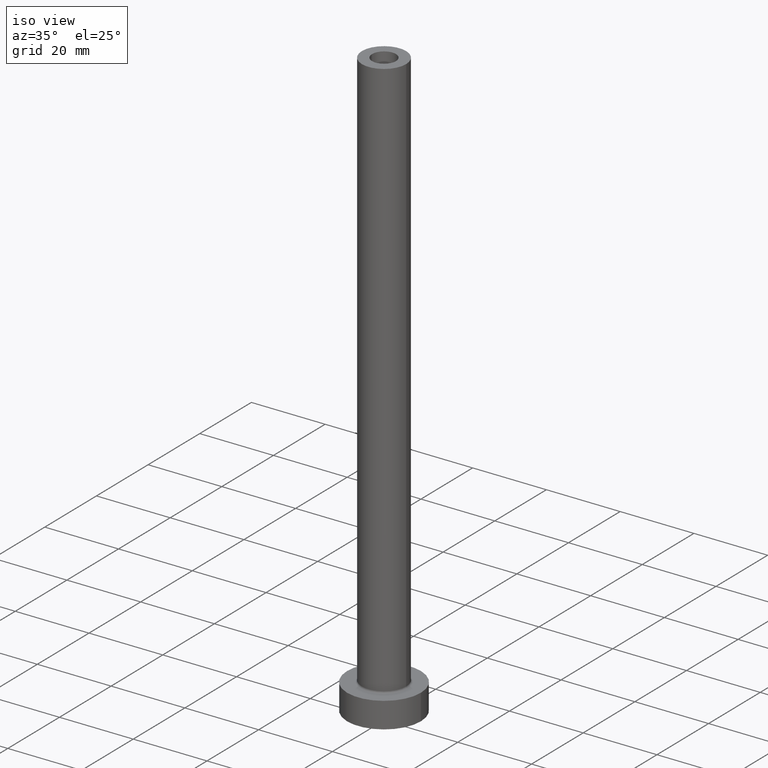
[diagram: clean part render]
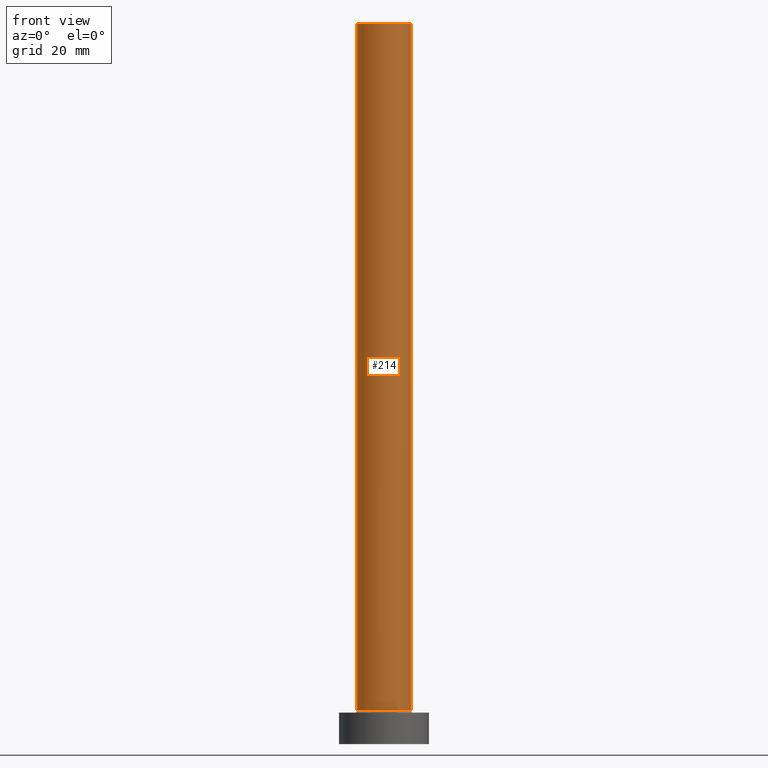
[diagram: tour spotlight — one face highlighted and labeled with its STEP entity id]
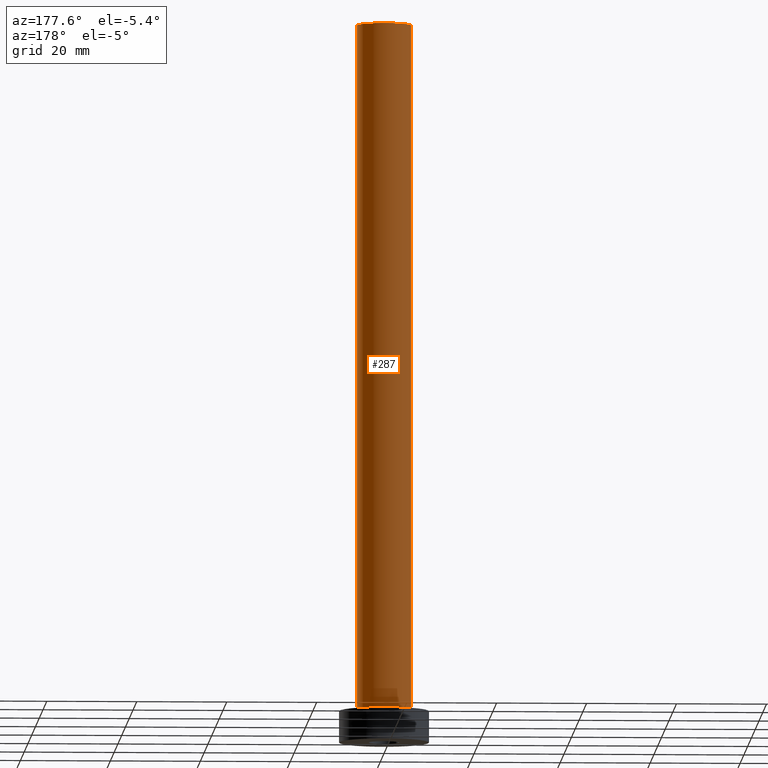
[diagram: tour spotlight — one face highlighted and labeled with its STEP entity id]
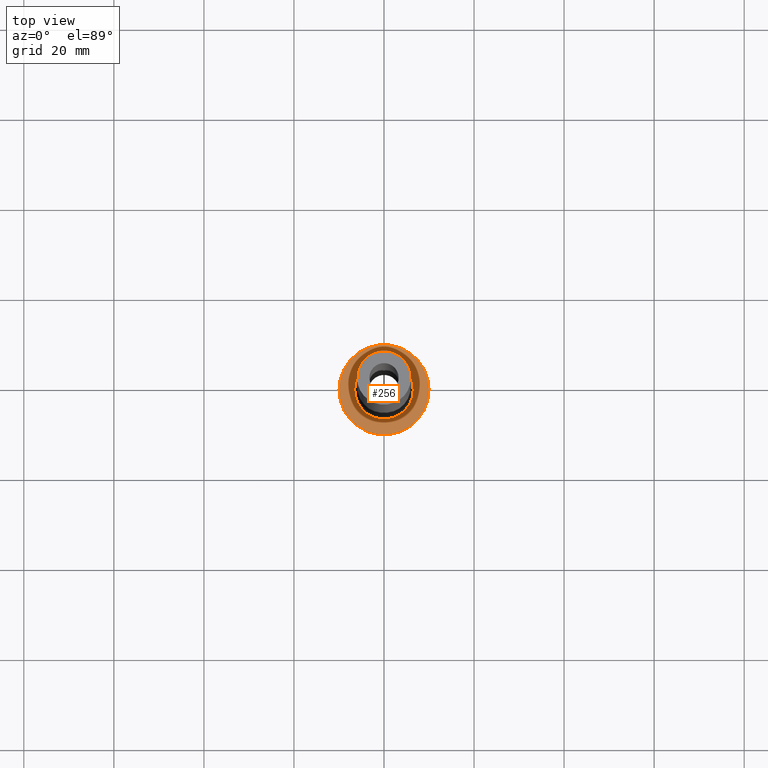
[diagram: tour spotlight — one face highlighted and labeled with its STEP entity id]
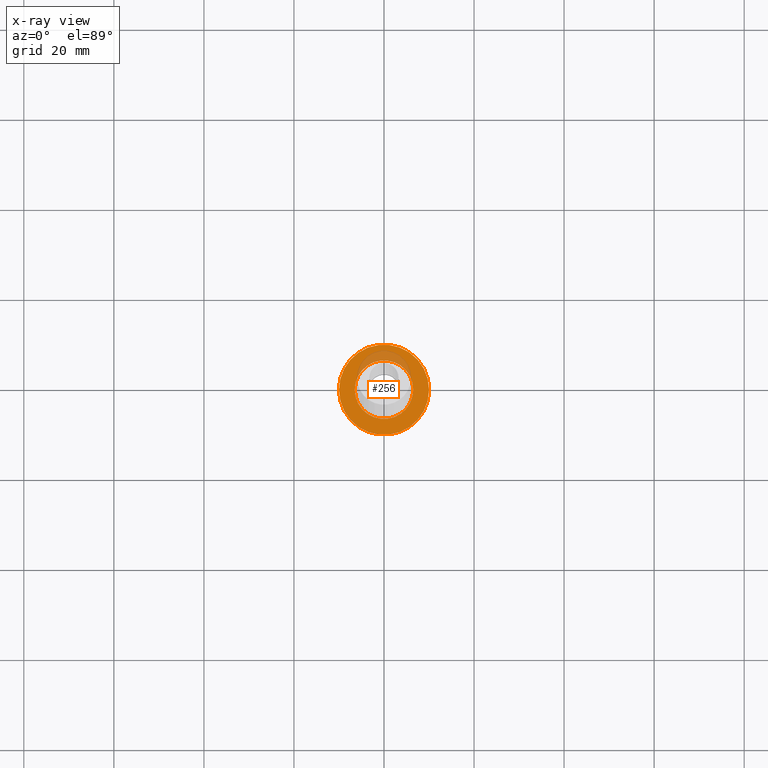
[diagram: x-ray of the same camera — body ghosted, this tour face saturated]
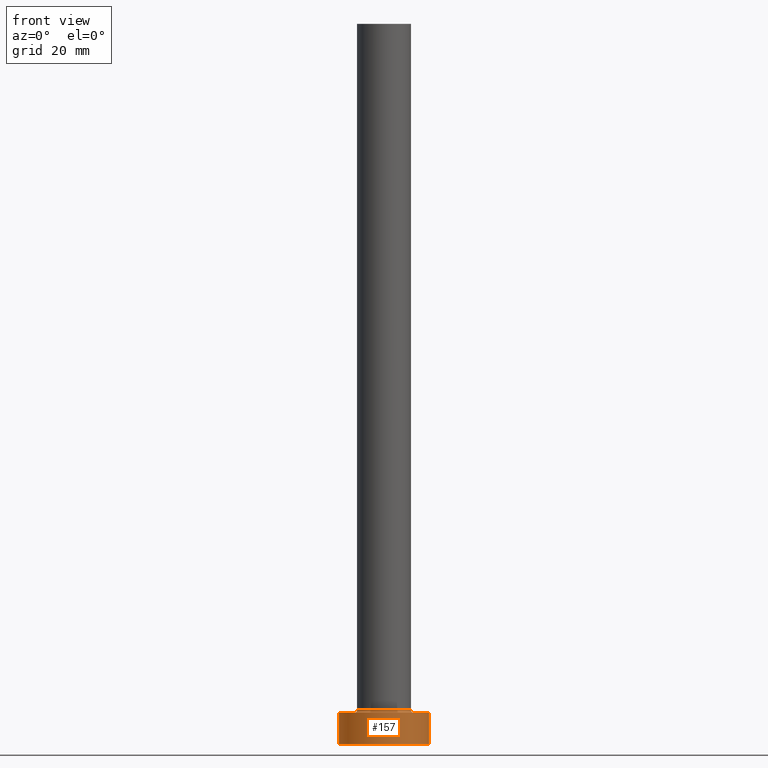
[diagram: tour spotlight — one face highlighted and labeled with its STEP entity id]
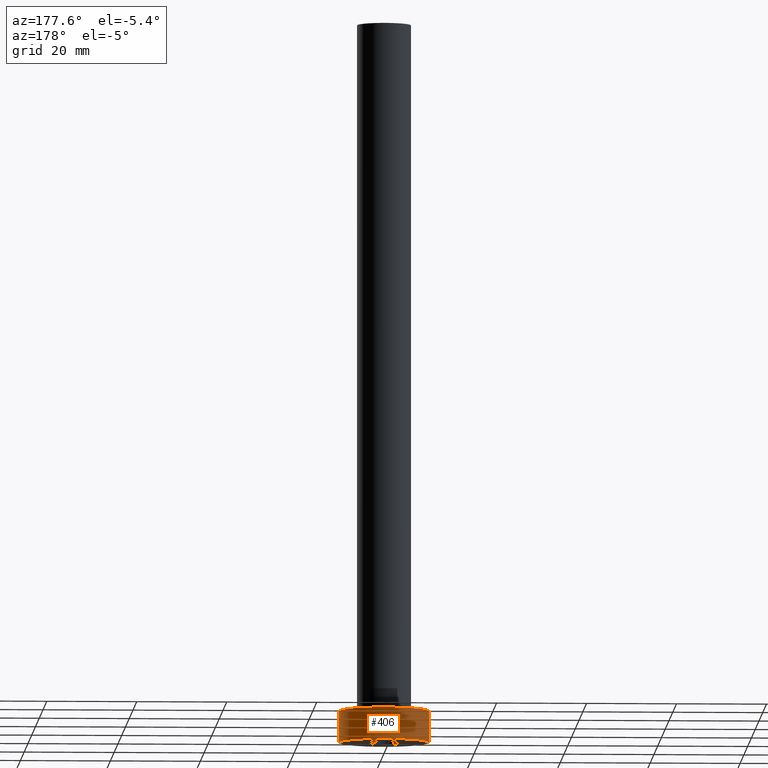
[diagram: tour spotlight — one face highlighted and labeled with its STEP entity id]
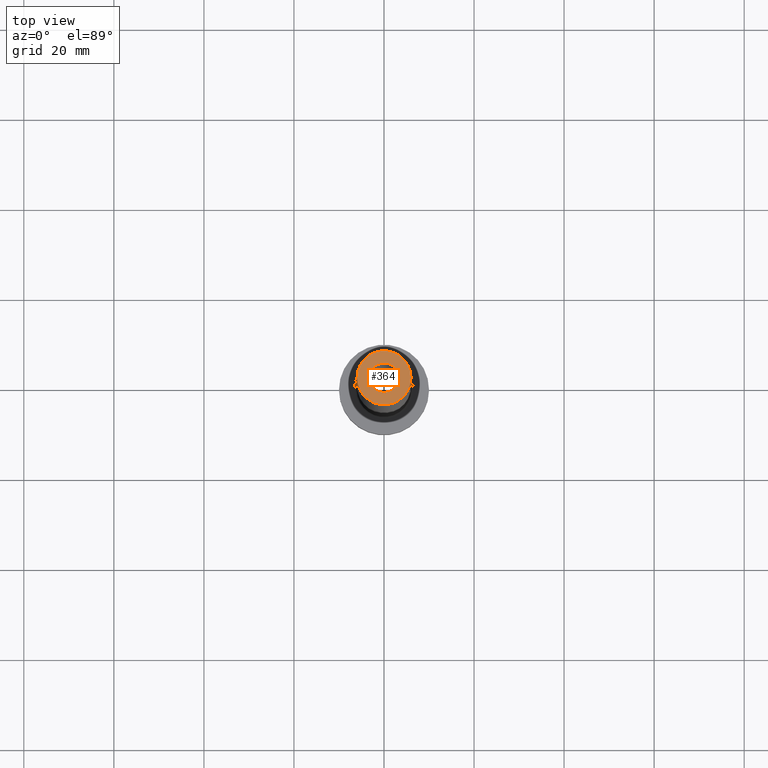
[diagram: tour spotlight — one face highlighted and labeled with its STEP entity id]
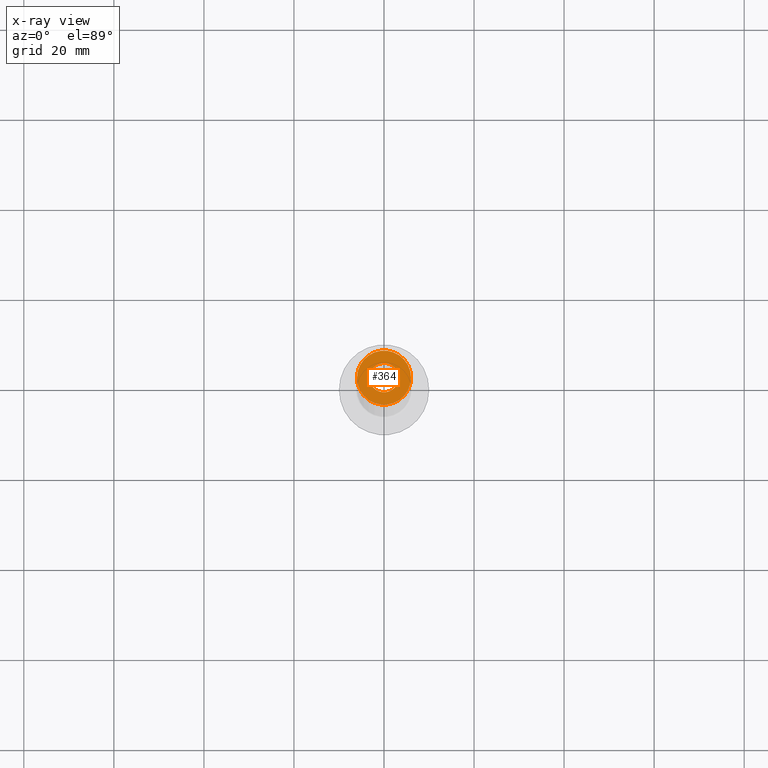
[diagram: x-ray of the same camera — body ghosted, this tour face saturated]
A machine part: a face-by-face anatomy tour. The part has 14 B-rep faces; the first image is the clean iso view, then the 6 largest visible faces are spotlighted one at a time (largest first), each with its STEP entity span.

Face 1 — front view, entity #214. In plain terms, the highlighted cylindrical surface (edge-blend (fillet) strip) has radius 6 mm, axis along (-0, -0, -1).
Definition (entity closure, byte-faithful):
#5 = DIRECTION ( 'NONE',  ( -1.000000000000000000, 0.000000000000000000, 0.000000000000000000 ) ) ;
#7 = EDGE_CURVE ( 'NONE', #299, #183, #323, .T. ) ;
#19 = VECTOR ( 'NONE', #259, 1000.000000000000000 ) ;
#25 = LINE ( 'NONE', #304, #104 ) ;
#48 = LINE ( 'NONE', #181, #19 ) ;
#59 = DIRECTION ( 'NONE',  ( 1.000000000000000000, 0.000000000000000000, 0.000000000000000000 ) ) ;
#70 = DIRECTION ( 'NONE',  ( -0.000000000000000000, -0.000000000000000000, -1.000000000000000000 ) ) ;
#79 = VERTEX_POINT ( 'NONE', #94 ) ;
#94 = CARTESIAN_POINT ( 'NONE',  ( 6.000000000000000888, 7.347880794884120722E-16, 160.0000000000000000 ) ) ;
#104 = VECTOR ( 'NONE', #70, 1000.000000000000000 ) ;
#141 = AXIS2_PLACEMENT_3D ( 'NONE', #379, #303, #59 ) ;
#142 = CARTESIAN_POINT ( 'NONE',  ( -6.000000000000000888, 0.000000000000000000, 160.0000000000000000 ) ) ;
#153 = ORIENTED_EDGE ( 'NONE', *, *, #428, .T. ) ;
#164 = EDGE_CURVE ( 'NONE', #79, #183, #25, .T. ) ;
#174 = CIRCLE ( 'NONE', #236, 6.000000000000000888 ) ;
#181 = CARTESIAN_POINT ( 'NONE',  ( -6.000000000000000888, 0.000000000000000000, 160.0000000000000000 ) ) ;
#183 = VERTEX_POINT ( 'NONE', #239 ) ;
#188 = AXIS2_PLACEMENT_3D ( 'NONE', #427, #248, #5 ) ;
#191 = VERTEX_POINT ( 'NONE', #142 ) ;
#214 = ADVANCED_FACE ( 'NONE', ( #454 ), #431, .T. ) ;
#217 = EDGE_LOOP ( 'NONE', ( #288, #441, #153, #400 ) ) ;
#236 = AXIS2_PLACEMENT_3D ( 'NONE', #389, #282, #240 ) ;
#239 = CARTESIAN_POINT ( 'NONE',  ( 6.000000000000000888, 7.347880794884120722E-16, 7.500000000000007105 ) ) ;
#240 = DIRECTION ( 'NONE',  ( 1.000000000000000000, 0.000000000000000000, 0.000000000000000000 ) ) ;
#248 = DIRECTION ( 'NONE',  ( -0.000000000000000000, -0.000000000000000000, -1.000000000000000000 ) ) ;
#259 = DIRECTION ( 'NONE',  ( -0.000000000000000000, -0.000000000000000000, -1.000000000000000000 ) ) ;
#282 = DIRECTION ( 'NONE',  ( 0.000000000000000000, 0.000000000000000000, 1.000000000000000000 ) ) ;
#288 = ORIENTED_EDGE ( 'NONE', *, *, #164, .F. ) ;
#299 = VERTEX_POINT ( 'NONE', #415 ) ;
#303 = DIRECTION ( 'NONE',  ( 0.000000000000000000, 0.000000000000000000, 1.000000000000000000 ) ) ;
#304 = CARTESIAN_POINT ( 'NONE',  ( 6.000000000000000888, 7.347880794884120722E-16, 160.0000000000000000 ) ) ;
#323 = CIRCLE ( 'NONE', #141, 6.000000000000000888 ) ;
#379 = CARTESIAN_POINT ( 'NONE',  ( 0.000000000000000000, 0.000000000000000000, 7.500000000000007105 ) ) ;
#389 = CARTESIAN_POINT ( 'NONE',  ( 0.000000000000000000, 0.000000000000000000, 160.0000000000000000 ) ) ;
#400 = ORIENTED_EDGE ( 'NONE', *, *, #7, .T. ) ;
#415 = CARTESIAN_POINT ( 'NONE',  ( -6.000000000000000888, 0.000000000000000000, 7.500000000000007105 ) ) ;
#427 = CARTESIAN_POINT ( 'NONE',  ( 0.000000000000000000, 0.000000000000000000, 160.0000000000000000 ) ) ;
#428 = EDGE_CURVE ( 'NONE', #191, #299, #48, .T. ) ;
#431 = CYLINDRICAL_SURFACE ( 'NONE', #188, 6.000000000000000888 ) ;
#441 = ORIENTED_EDGE ( 'NONE', *, *, #443, .F. ) ;
#443 = EDGE_CURVE ( 'NONE', #191, #79, #174, .T. ) ;
#454 = FACE_OUTER_BOUND ( 'NONE', #217, .T. ) ;

Face 2 — auxiliary view, entity #287. In plain terms, the highlighted cylindrical surface (edge-blend (fillet) strip) has radius 6 mm, axis along (-0, -0, -1).
Definition (entity closure, byte-faithful):
#11 = ORIENTED_EDGE ( 'NONE', *, *, #283, .T. ) ;
#19 = VECTOR ( 'NONE', #259, 1000.000000000000000 ) ;
#25 = LINE ( 'NONE', #304, #104 ) ;
#48 = LINE ( 'NONE', #181, #19 ) ;
#52 = DIRECTION ( 'NONE',  ( 0.000000000000000000, 0.000000000000000000, 1.000000000000000000 ) ) ;
#61 = CARTESIAN_POINT ( 'NONE',  ( 0.000000000000000000, 0.000000000000000000, 160.0000000000000000 ) ) ;
#63 = DIRECTION ( 'NONE',  ( 1.000000000000000000, 0.000000000000000000, 0.000000000000000000 ) ) ;
#70 = DIRECTION ( 'NONE',  ( -0.000000000000000000, -0.000000000000000000, -1.000000000000000000 ) ) ;
#79 = VERTEX_POINT ( 'NONE', #94 ) ;
#83 = FACE_OUTER_BOUND ( 'NONE', #437, .T. ) ;
#85 = EDGE_CURVE ( 'NONE', #79, #191, #412, .T. ) ;
#91 = DIRECTION ( 'NONE',  ( 0.000000000000000000, 0.000000000000000000, 1.000000000000000000 ) ) ;
#94 = CARTESIAN_POINT ( 'NONE',  ( 6.000000000000000888, 7.347880794884120722E-16, 160.0000000000000000 ) ) ;
#95 = CARTESIAN_POINT ( 'NONE',  ( 0.000000000000000000, 0.000000000000000000, 7.500000000000007105 ) ) ;
#104 = VECTOR ( 'NONE', #70, 1000.000000000000000 ) ;
#106 = AXIS2_PLACEMENT_3D ( 'NONE', #61, #91, #381 ) ;
#133 = CIRCLE ( 'NONE', #143, 6.000000000000000888 ) ;
#142 = CARTESIAN_POINT ( 'NONE',  ( -6.000000000000000888, 0.000000000000000000, 160.0000000000000000 ) ) ;
#143 = AXIS2_PLACEMENT_3D ( 'NONE', #95, #52, #63 ) ;
#164 = EDGE_CURVE ( 'NONE', #79, #183, #25, .T. ) ;
#166 = AXIS2_PLACEMENT_3D ( 'NONE', #302, #365, #314 ) ;
#181 = CARTESIAN_POINT ( 'NONE',  ( -6.000000000000000888, 0.000000000000000000, 160.0000000000000000 ) ) ;
#183 = VERTEX_POINT ( 'NONE', #239 ) ;
#184 = CYLINDRICAL_SURFACE ( 'NONE', #166, 6.000000000000000888 ) ;
#191 = VERTEX_POINT ( 'NONE', #142 ) ;
#239 = CARTESIAN_POINT ( 'NONE',  ( 6.000000000000000888, 7.347880794884120722E-16, 7.500000000000007105 ) ) ;
#259 = DIRECTION ( 'NONE',  ( -0.000000000000000000, -0.000000000000000000, -1.000000000000000000 ) ) ;
#283 = EDGE_CURVE ( 'NONE', #183, #299, #133, .T. ) ;
#287 = ADVANCED_FACE ( 'NONE', ( #83 ), #184, .T. ) ;
#299 = VERTEX_POINT ( 'NONE', #415 ) ;
#302 = CARTESIAN_POINT ( 'NONE',  ( 0.000000000000000000, 0.000000000000000000, 160.0000000000000000 ) ) ;
#304 = CARTESIAN_POINT ( 'NONE',  ( 6.000000000000000888, 7.347880794884120722E-16, 160.0000000000000000 ) ) ;
#314 = DIRECTION ( 'NONE',  ( -1.000000000000000000, 0.000000000000000000, 0.000000000000000000 ) ) ;
#330 = ORIENTED_EDGE ( 'NONE', *, *, #428, .F. ) ;
#365 = DIRECTION ( 'NONE',  ( -0.000000000000000000, -0.000000000000000000, -1.000000000000000000 ) ) ;
#381 = DIRECTION ( 'NONE',  ( 1.000000000000000000, 0.000000000000000000, 0.000000000000000000 ) ) ;
#412 = CIRCLE ( 'NONE', #106, 6.000000000000000888 ) ;
#413 = ORIENTED_EDGE ( 'NONE', *, *, #85, .F. ) ;
#415 = CARTESIAN_POINT ( 'NONE',  ( -6.000000000000000888, 0.000000000000000000, 7.500000000000007105 ) ) ;
#428 = EDGE_CURVE ( 'NONE', #191, #299, #48, .T. ) ;
#433 = ORIENTED_EDGE ( 'NONE', *, *, #164, .T. ) ;
#437 = EDGE_LOOP ( 'NONE', ( #413, #433, #11, #330 ) ) ;

Face 3 — top view, entity #256. An x-ray twin of the same camera follows (body ghosted, this face saturated) — the face is partly hidden behind the body. In plain terms, the highlighted planar face has unit normal (0, 0, 1).
Definition (entity closure, byte-faithful):
#3 = AXIS2_PLACEMENT_3D ( 'NONE', #337, #227, #298 ) ;
#12 = VERTEX_POINT ( 'NONE', #22 ) ;
#15 = CIRCLE ( 'NONE', #274, 6.500000000000000888 ) ;
#22 = CARTESIAN_POINT ( 'NONE',  ( 10.00000000000000000, 1.224646799147353256E-15, 7.000000000000000000 ) ) ;
#24 = CIRCLE ( 'NONE', #285, 10.00000000000000000 ) ;
#32 = CARTESIAN_POINT ( 'NONE',  ( 0.000000000000000000, 0.000000000000000000, 7.000000000000000000 ) ) ;
#71 = EDGE_CURVE ( 'NONE', #362, #410, #249, .T. ) ;
#82 = ORIENTED_EDGE ( 'NONE', *, *, #108, .T. ) ;
#92 = EDGE_LOOP ( 'NONE', ( #363, #136 ) ) ;
#98 = EDGE_CURVE ( 'NONE', #309, #12, #366, .T. ) ;
#108 = EDGE_CURVE ( 'NONE', #12, #309, #24, .T. ) ;
#127 = EDGE_LOOP ( 'NONE', ( #333, #82 ) ) ;
#136 = ORIENTED_EDGE ( 'NONE', *, *, #71, .T. ) ;
#138 = CARTESIAN_POINT ( 'NONE',  ( 0.000000000000000000, 0.000000000000000000, 7.000000000000000000 ) ) ;
#152 = FACE_OUTER_BOUND ( 'NONE', #127, .T. ) ;
#155 = DIRECTION ( 'NONE',  ( 1.000000000000000000, 0.000000000000000000, 0.000000000000000000 ) ) ;
#163 = AXIS2_PLACEMENT_3D ( 'NONE', #32, #346, #198 ) ;
#171 = DIRECTION ( 'NONE',  ( 1.000000000000000000, 0.000000000000000000, 0.000000000000000000 ) ) ;
#179 = FACE_BOUND ( 'NONE', #92, .T. ) ;
#198 = DIRECTION ( 'NONE',  ( 1.000000000000000000, 0.000000000000000000, 0.000000000000000000 ) ) ;
#202 = CARTESIAN_POINT ( 'NONE',  ( -10.00000000000000000, 0.000000000000000000, 7.000000000000000000 ) ) ;
#208 = DIRECTION ( 'NONE',  ( 0.000000000000000000, 0.000000000000000000, 1.000000000000000000 ) ) ;
#227 = DIRECTION ( 'NONE',  ( 0.000000000000000000, 0.000000000000000000, 1.000000000000000000 ) ) ;
#249 = CIRCLE ( 'NONE', #308, 6.500000000000000888 ) ;
#256 = ADVANCED_FACE ( 'NONE', ( #179, #152 ), #296, .T. ) ;
#261 = EDGE_CURVE ( 'NONE', #410, #362, #15, .T. ) ;
#262 = CARTESIAN_POINT ( 'NONE',  ( 0.000000000000000000, 0.000000000000000000, 7.000000000000000000 ) ) ;
#274 = AXIS2_PLACEMENT_3D ( 'NONE', #262, #440, #155 ) ;
#276 = CARTESIAN_POINT ( 'NONE',  ( 0.000000000000000000, 0.000000000000000000, 7.000000000000000000 ) ) ;
#285 = AXIS2_PLACEMENT_3D ( 'NONE', #276, #208, #319 ) ;
#296 = PLANE ( 'NONE',  #3 ) ;
#298 = DIRECTION ( 'NONE',  ( 1.000000000000000000, 0.000000000000000000, -0.000000000000000000 ) ) ;
#306 = DIRECTION ( 'NONE',  ( -0.000000000000000000, -0.000000000000000000, -1.000000000000000000 ) ) ;
#308 = AXIS2_PLACEMENT_3D ( 'NONE', #138, #306, #171 ) ;
#309 = VERTEX_POINT ( 'NONE', #202 ) ;
#319 = DIRECTION ( 'NONE',  ( 1.000000000000000000, 0.000000000000000000, 0.000000000000000000 ) ) ;
#333 = ORIENTED_EDGE ( 'NONE', *, *, #98, .T. ) ;
#337 = CARTESIAN_POINT ( 'NONE',  ( 0.000000000000000000, 0.000000000000000000, 7.000000000000000000 ) ) ;
#346 = DIRECTION ( 'NONE',  ( 0.000000000000000000, 0.000000000000000000, 1.000000000000000000 ) ) ;
#362 = VERTEX_POINT ( 'NONE', #372 ) ;
#363 = ORIENTED_EDGE ( 'NONE', *, *, #261, .T. ) ;
#366 = CIRCLE ( 'NONE', #163, 10.00000000000000000 ) ;
#372 = CARTESIAN_POINT ( 'NONE',  ( -6.500000000000000888, 7.960204194457796463E-16, 7.000000000000002665 ) ) ;
#382 = CARTESIAN_POINT ( 'NONE',  ( 6.500000000000000888, 0.000000000000000000, 7.000000000000002665 ) ) ;
#410 = VERTEX_POINT ( 'NONE', #382 ) ;
#440 = DIRECTION ( 'NONE',  ( -0.000000000000000000, -0.000000000000000000, -1.000000000000000000 ) ) ;

Face 4 — front view, entity #157. In plain terms, the highlighted cylindrical surface (partial cylindrical patch) has radius 10 mm, axis along (-0, -0, -1).
Definition (entity closure, byte-faithful):
#12 = VERTEX_POINT ( 'NONE', #22 ) ;
#18 = EDGE_CURVE ( 'NONE', #167, #383, #112, .T. ) ;
#22 = CARTESIAN_POINT ( 'NONE',  ( 10.00000000000000000, 1.224646799147353256E-15, 7.000000000000000000 ) ) ;
#23 = CYLINDRICAL_SURFACE ( 'NONE', #402, 10.00000000000000000 ) ;
#27 = ORIENTED_EDGE ( 'NONE', *, *, #335, .F. ) ;
#32 = CARTESIAN_POINT ( 'NONE',  ( 0.000000000000000000, 0.000000000000000000, 7.000000000000000000 ) ) ;
#56 = CARTESIAN_POINT ( 'NONE',  ( 0.000000000000000000, 0.000000000000000000, 0.000000000000000000 ) ) ;
#66 = CARTESIAN_POINT ( 'NONE',  ( -10.00000000000000000, 0.000000000000000000, 0.000000000000000000 ) ) ;
#98 = EDGE_CURVE ( 'NONE', #309, #12, #366, .T. ) ;
#112 = CIRCLE ( 'NONE', #172, 10.00000000000000000 ) ;
#118 = ORIENTED_EDGE ( 'NONE', *, *, #353, .T. ) ;
#126 = LINE ( 'NONE', #376, #435 ) ;
#149 = ORIENTED_EDGE ( 'NONE', *, *, #98, .F. ) ;
#157 = ADVANCED_FACE ( 'NONE', ( #158 ), #23, .T. ) ;
#158 = FACE_OUTER_BOUND ( 'NONE', #450, .T. ) ;
#163 = AXIS2_PLACEMENT_3D ( 'NONE', #32, #346, #198 ) ;
#167 = VERTEX_POINT ( 'NONE', #66 ) ;
#172 = AXIS2_PLACEMENT_3D ( 'NONE', #56, #189, #185 ) ;
#185 = DIRECTION ( 'NONE',  ( 1.000000000000000000, 0.000000000000000000, 0.000000000000000000 ) ) ;
#189 = DIRECTION ( 'NONE',  ( 0.000000000000000000, 0.000000000000000000, 1.000000000000000000 ) ) ;
#196 = LINE ( 'NONE', #331, #422 ) ;
#198 = DIRECTION ( 'NONE',  ( 1.000000000000000000, 0.000000000000000000, 0.000000000000000000 ) ) ;
#199 = CARTESIAN_POINT ( 'NONE',  ( 10.00000000000000000, 1.224646799147353256E-15, 0.000000000000000000 ) ) ;
#202 = CARTESIAN_POINT ( 'NONE',  ( -10.00000000000000000, 0.000000000000000000, 7.000000000000000000 ) ) ;
#273 = CARTESIAN_POINT ( 'NONE',  ( 0.000000000000000000, 0.000000000000000000, 7.000000000000000000 ) ) ;
#295 = ORIENTED_EDGE ( 'NONE', *, *, #18, .T. ) ;
#309 = VERTEX_POINT ( 'NONE', #202 ) ;
#331 = CARTESIAN_POINT ( 'NONE',  ( 10.00000000000000000, 1.224646799147353256E-15, 7.000000000000000000 ) ) ;
#335 = EDGE_CURVE ( 'NONE', #12, #383, #196, .T. ) ;
#338 = DIRECTION ( 'NONE',  ( -0.000000000000000000, -0.000000000000000000, -1.000000000000000000 ) ) ;
#346 = DIRECTION ( 'NONE',  ( 0.000000000000000000, 0.000000000000000000, 1.000000000000000000 ) ) ;
#353 = EDGE_CURVE ( 'NONE', #309, #167, #126, .T. ) ;
#366 = CIRCLE ( 'NONE', #163, 10.00000000000000000 ) ;
#376 = CARTESIAN_POINT ( 'NONE',  ( -10.00000000000000000, 0.000000000000000000, 7.000000000000000000 ) ) ;
#383 = VERTEX_POINT ( 'NONE', #199 ) ;
#402 = AXIS2_PLACEMENT_3D ( 'NONE', #273, #338, #418 ) ;
#409 = DIRECTION ( 'NONE',  ( -0.000000000000000000, -0.000000000000000000, -1.000000000000000000 ) ) ;
#418 = DIRECTION ( 'NONE',  ( -1.000000000000000000, 0.000000000000000000, 0.000000000000000000 ) ) ;
#422 = VECTOR ( 'NONE', #449, 1000.000000000000000 ) ;
#435 = VECTOR ( 'NONE', #409, 1000.000000000000000 ) ;
#449 = DIRECTION ( 'NONE',  ( -0.000000000000000000, -0.000000000000000000, -1.000000000000000000 ) ) ;
#450 = EDGE_LOOP ( 'NONE', ( #27, #149, #118, #295 ) ) ;

Face 5 — auxiliary view, entity #406. In plain terms, the highlighted cylindrical surface (partial cylindrical patch) has radius 10 mm, axis along (-0, -0, -1).
Definition (entity closure, byte-faithful):
#12 = VERTEX_POINT ( 'NONE', #22 ) ;
#22 = CARTESIAN_POINT ( 'NONE',  ( 10.00000000000000000, 1.224646799147353256E-15, 7.000000000000000000 ) ) ;
#24 = CIRCLE ( 'NONE', #285, 10.00000000000000000 ) ;
#31 = FACE_OUTER_BOUND ( 'NONE', #325, .T. ) ;
#43 = AXIS2_PLACEMENT_3D ( 'NONE', #321, #105, #102 ) ;
#66 = CARTESIAN_POINT ( 'NONE',  ( -10.00000000000000000, 0.000000000000000000, 0.000000000000000000 ) ) ;
#102 = DIRECTION ( 'NONE',  ( -1.000000000000000000, 0.000000000000000000, 0.000000000000000000 ) ) ;
#105 = DIRECTION ( 'NONE',  ( -0.000000000000000000, -0.000000000000000000, -1.000000000000000000 ) ) ;
#108 = EDGE_CURVE ( 'NONE', #12, #309, #24, .T. ) ;
#126 = LINE ( 'NONE', #376, #435 ) ;
#131 = DIRECTION ( 'NONE',  ( 0.000000000000000000, 0.000000000000000000, 1.000000000000000000 ) ) ;
#167 = VERTEX_POINT ( 'NONE', #66 ) ;
#186 = ORIENTED_EDGE ( 'NONE', *, *, #108, .F. ) ;
#196 = LINE ( 'NONE', #331, #422 ) ;
#199 = CARTESIAN_POINT ( 'NONE',  ( 10.00000000000000000, 1.224646799147353256E-15, 0.000000000000000000 ) ) ;
#202 = CARTESIAN_POINT ( 'NONE',  ( -10.00000000000000000, 0.000000000000000000, 7.000000000000000000 ) ) ;
#208 = DIRECTION ( 'NONE',  ( 0.000000000000000000, 0.000000000000000000, 1.000000000000000000 ) ) ;
#225 = CIRCLE ( 'NONE', #286, 10.00000000000000000 ) ;
#276 = CARTESIAN_POINT ( 'NONE',  ( 0.000000000000000000, 0.000000000000000000, 7.000000000000000000 ) ) ;
#285 = AXIS2_PLACEMENT_3D ( 'NONE', #276, #208, #319 ) ;
#286 = AXIS2_PLACEMENT_3D ( 'NONE', #343, #131, #421 ) ;
#309 = VERTEX_POINT ( 'NONE', #202 ) ;
#319 = DIRECTION ( 'NONE',  ( 1.000000000000000000, 0.000000000000000000, 0.000000000000000000 ) ) ;
#321 = CARTESIAN_POINT ( 'NONE',  ( 0.000000000000000000, 0.000000000000000000, 7.000000000000000000 ) ) ;
#325 = EDGE_LOOP ( 'NONE', ( #186, #373, #329, #340 ) ) ;
#329 = ORIENTED_EDGE ( 'NONE', *, *, #390, .T. ) ;
#331 = CARTESIAN_POINT ( 'NONE',  ( 10.00000000000000000, 1.224646799147353256E-15, 7.000000000000000000 ) ) ;
#335 = EDGE_CURVE ( 'NONE', #12, #383, #196, .T. ) ;
#340 = ORIENTED_EDGE ( 'NONE', *, *, #353, .F. ) ;
#343 = CARTESIAN_POINT ( 'NONE',  ( 0.000000000000000000, 0.000000000000000000, 0.000000000000000000 ) ) ;
#353 = EDGE_CURVE ( 'NONE', #309, #167, #126, .T. ) ;
#373 = ORIENTED_EDGE ( 'NONE', *, *, #335, .T. ) ;
#376 = CARTESIAN_POINT ( 'NONE',  ( -10.00000000000000000, 0.000000000000000000, 7.000000000000000000 ) ) ;
#383 = VERTEX_POINT ( 'NONE', #199 ) ;
#388 = CYLINDRICAL_SURFACE ( 'NONE', #43, 10.00000000000000000 ) ;
#390 = EDGE_CURVE ( 'NONE', #383, #167, #225, .T. ) ;
#406 = ADVANCED_FACE ( 'NONE', ( #31 ), #388, .T. ) ;
#409 = DIRECTION ( 'NONE',  ( -0.000000000000000000, -0.000000000000000000, -1.000000000000000000 ) ) ;
#421 = DIRECTION ( 'NONE',  ( 1.000000000000000000, 0.000000000000000000, 0.000000000000000000 ) ) ;
#422 = VECTOR ( 'NONE', #449, 1000.000000000000000 ) ;
#435 = VECTOR ( 'NONE', #409, 1000.000000000000000 ) ;
#449 = DIRECTION ( 'NONE',  ( -0.000000000000000000, -0.000000000000000000, -1.000000000000000000 ) ) ;

Face 6 — top view, entity #364. An x-ray twin of the same camera follows (body ghosted, this face saturated) — the face is partly hidden behind the body. In plain terms, the highlighted planar face has unit normal (0, 0, 1).
Definition (entity closure, byte-faithful):
#2 = DIRECTION ( 'NONE',  ( 1.000000000000000000, 0.000000000000000000, 0.000000000000000000 ) ) ;
#17 = VERTEX_POINT ( 'NONE', #424 ) ;
#38 = EDGE_CURVE ( 'NONE', #81, #17, #232, .T. ) ;
#47 = CARTESIAN_POINT ( 'NONE',  ( 0.000000000000000000, 0.000000000000000000, 160.0000000000000000 ) ) ;
#51 = AXIS2_PLACEMENT_3D ( 'NONE', #47, #444, #399 ) ;
#58 = FACE_BOUND ( 'NONE', #290, .T. ) ;
#61 = CARTESIAN_POINT ( 'NONE',  ( 0.000000000000000000, 0.000000000000000000, 160.0000000000000000 ) ) ;
#62 = CARTESIAN_POINT ( 'NONE',  ( 0.000000000000000000, 0.000000000000000000, 160.0000000000000000 ) ) ;
#78 = EDGE_LOOP ( 'NONE', ( #146, #367 ) ) ;
#79 = VERTEX_POINT ( 'NONE', #94 ) ;
#81 = VERTEX_POINT ( 'NONE', #135 ) ;
#85 = EDGE_CURVE ( 'NONE', #79, #191, #412, .T. ) ;
#91 = DIRECTION ( 'NONE',  ( 0.000000000000000000, 0.000000000000000000, 1.000000000000000000 ) ) ;
#94 = CARTESIAN_POINT ( 'NONE',  ( 6.000000000000000888, 7.347880794884120722E-16, 160.0000000000000000 ) ) ;
#106 = AXIS2_PLACEMENT_3D ( 'NONE', #61, #91, #381 ) ;
#115 = CIRCLE ( 'NONE', #350, 3.250000000000000444 ) ;
#135 = CARTESIAN_POINT ( 'NONE',  ( -3.250000000000000444, 0.000000000000000000, 160.0000000000000000 ) ) ;
#142 = CARTESIAN_POINT ( 'NONE',  ( -6.000000000000000888, 0.000000000000000000, 160.0000000000000000 ) ) ;
#146 = ORIENTED_EDGE ( 'NONE', *, *, #443, .T. ) ;
#159 = PLANE ( 'NONE',  #442 ) ;
#174 = CIRCLE ( 'NONE', #236, 6.000000000000000888 ) ;
#191 = VERTEX_POINT ( 'NONE', #142 ) ;
#232 = CIRCLE ( 'NONE', #51, 3.250000000000000444 ) ;
#236 = AXIS2_PLACEMENT_3D ( 'NONE', #389, #282, #240 ) ;
#240 = DIRECTION ( 'NONE',  ( 1.000000000000000000, 0.000000000000000000, 0.000000000000000000 ) ) ;
#260 = ORIENTED_EDGE ( 'NONE', *, *, #392, .F. ) ;
#269 = ORIENTED_EDGE ( 'NONE', *, *, #38, .F. ) ;
#277 = CARTESIAN_POINT ( 'NONE',  ( 0.000000000000000000, 0.000000000000000000, 160.0000000000000000 ) ) ;
#282 = DIRECTION ( 'NONE',  ( 0.000000000000000000, 0.000000000000000000, 1.000000000000000000 ) ) ;
#290 = EDGE_LOOP ( 'NONE', ( #269, #260 ) ) ;
#305 = DIRECTION ( 'NONE',  ( 0.000000000000000000, 0.000000000000000000, 1.000000000000000000 ) ) ;
#339 = FACE_OUTER_BOUND ( 'NONE', #78, .T. ) ;
#350 = AXIS2_PLACEMENT_3D ( 'NONE', #277, #358, #2 ) ;
#358 = DIRECTION ( 'NONE',  ( 0.000000000000000000, 0.000000000000000000, 1.000000000000000000 ) ) ;
#364 = ADVANCED_FACE ( 'NONE', ( #58, #339 ), #159, .T. ) ;
#367 = ORIENTED_EDGE ( 'NONE', *, *, #85, .T. ) ;
#381 = DIRECTION ( 'NONE',  ( 1.000000000000000000, 0.000000000000000000, 0.000000000000000000 ) ) ;
#389 = CARTESIAN_POINT ( 'NONE',  ( 0.000000000000000000, 0.000000000000000000, 160.0000000000000000 ) ) ;
#392 = EDGE_CURVE ( 'NONE', #17, #81, #115, .T. ) ;
#399 = DIRECTION ( 'NONE',  ( 1.000000000000000000, 0.000000000000000000, 0.000000000000000000 ) ) ;
#412 = CIRCLE ( 'NONE', #106, 6.000000000000000888 ) ;
#424 = CARTESIAN_POINT ( 'NONE',  ( 3.250000000000000444, 3.980102097228897245E-16, 160.0000000000000000 ) ) ;
#442 = AXIS2_PLACEMENT_3D ( 'NONE', #62, #305, #446 ) ;
#443 = EDGE_CURVE ( 'NONE', #191, #79, #174, .T. ) ;
#444 = DIRECTION ( 'NONE',  ( 0.000000000000000000, 0.000000000000000000, 1.000000000000000000 ) ) ;
#446 = DIRECTION ( 'NONE',  ( 1.000000000000000000, 0.000000000000000000, -0.000000000000000000 ) ) ;